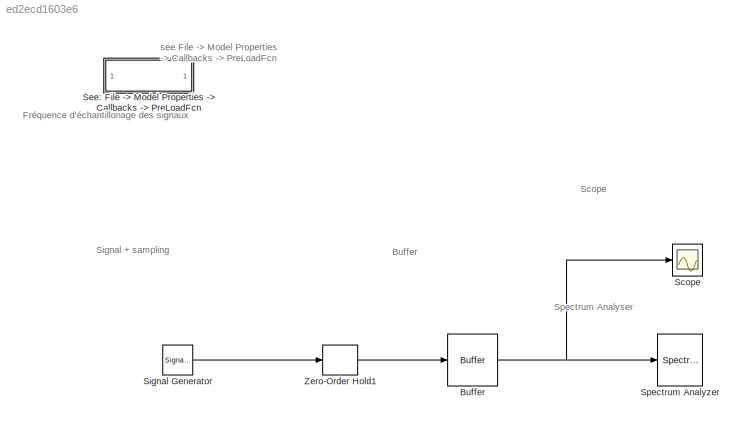
MODEL slx_ed2ecd1603e6
KIND model
CONFIG AbsTol = auto
CONFIG EnableMultiTasking = off
CONFIG FixedStep = auto
CONFIG InitFcn = fs = 2^13;
CONFIG MaxStep = auto
CONFIG MinStep = auto
CONFIG PreLoadFcn = fs = 2^13;
CONFIG RelTol = 1e-3
CONFIG SampleTimeConstraint = Unconstrained
CONFIG SolverName = ode45
CONFIG StartTime = 0.0
CONFIG StopTime = 2.0
BLOCK [Buffer] Buffer
  OutputFrames = off
BLOCK [Scope] Scope
  Floating = off
  NumInputPorts = 1
  Ports = [1]
  ScopeSpecificationString = Simulink.scopes.TimeScopeBlockCfg('CurrentConfiguration', extmgr.ConfigurationSet(extmgr.Configuration('Core','General UI',true),extmgr.Configuration('Core','Source UI',true),extmgr.Configuration('Sources','WiredSimulink',true),extmgr.Configuration('Visuals','Time Domain',true,'InputProcessing','FrameProcessing','SerializedDisplays',{struct('MinYLimReal','-1.25','MaxYLimReal','1.25','YLabelReal','...<+1817ch>
  Tag = Scope
BLOCK [SubSystem] See: File -> Model Properties -> Callbacks -> PreLoadFcn 
  Ports = []
  RequestExecContextInheritance = off
BLOCK [SignalGenerator] Signal Generator
  Frequency = 200
  Ports = [0, 1]
  Tag = Signal Generator
  WaveForm = square
BLOCK [SpectrumAnalyzer] Spectrum Analyzer
  Ports = [1]
  ScopeSpecificationString = spbscopes.SpectrumAnalyzerBlockCfg('CurrentConfiguration', extmgr.ConfigurationSet(extmgr.Configuration('Core','General UI',true,'ShowStatusbar',false,'FigureColor',[0.941176470588235 0.941176470588235 0.941176470588235]),extmgr.Configuration('Core','Source UI',true),extmgr.Configuration('Sources','WiredSimulink',true),extmgr.Configuration('Sources','File',false),extmgr.Configuration('Sources','SP...<+4253ch>
  StartFcn = startfcn_spectrum_analyzer;
  Tag = Spectrum Analyser
BLOCK [ZeroOrderHold] Zero-Order Hold1
  SampleTime = 1/fs
ANNOTATION (root): Buffer
ANNOTATION (root): Signal + sampling
ANNOTATION (root): Spectrum Analyser
ANNOTATION (root): Scope
ANNOTATION (root): Fréquence d'échantillonage des signaux
ANNOTATION (root): see File -> Model Properties -> Callbacks -> PreLoadFcn
NET Buffer:1 -> Scope:1, Spectrum Analyzer:1
LINE Signal Generator:1 -> Zero-Order Hold1:1
LINE Zero-Order Hold1:1 -> Buffer:1
note: NET lines group one-source signal fan-out (src -> all destinations, sorted); 1:1 wires keep LINE
